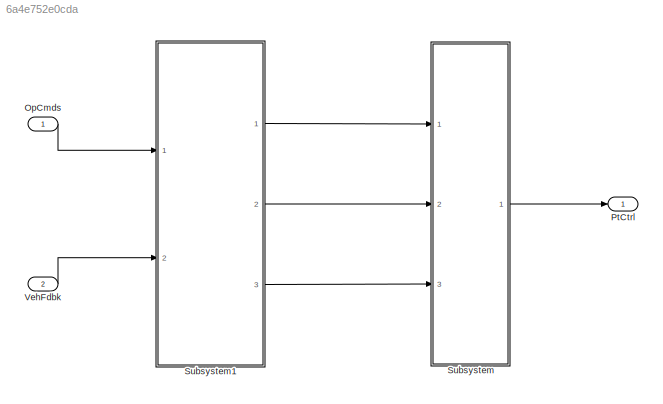
MODEL slx_6a4e752e0cda
KIND model
CONFIG AbsTol = auto
CONFIG EnableMultiTasking = off
CONFIG FixedStep = auto
CONFIG MaxStep = auto
CONFIG MinStep = auto
CONFIG RelTol = 1e-3
CONFIG SampleTimeConstraint = Unconstrained
CONFIG Solver = VariableStepAuto
CONFIG SolverName = VariableStepAuto
CONFIG StartTime = 0.0
CONFIG StopTime = 10.0
WORKSPACE source: mxarray member
WORKSPACE mot: object (value not decoded)
BLOCK [Inport] OpCmds
BLOCK [Outport] PtCtrl
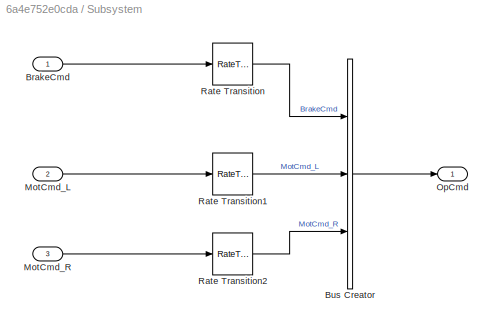
BLOCK [SubSystem] Subsystem
  Ports = [3, 1]
  RequestExecContextInheritance = off
BLOCK [Inport] Subsystem/BrakeCmd
BLOCK [BusCreator] Subsystem/Bus Creator
  DisplayOption = bar
  InheritFromInputs = on
  Inputs = 3
  Ports = [3, 1]
BLOCK [Inport] Subsystem/MotCmd_L
  Port = 2
BLOCK [Inport] Subsystem/MotCmd_R
  Port = 3
BLOCK [Outport] Subsystem/OpCmd
BLOCK [RateTransition] Subsystem/Rate Transition
BLOCK [RateTransition] Subsystem/Rate Transition1
BLOCK [RateTransition] Subsystem/Rate Transition2
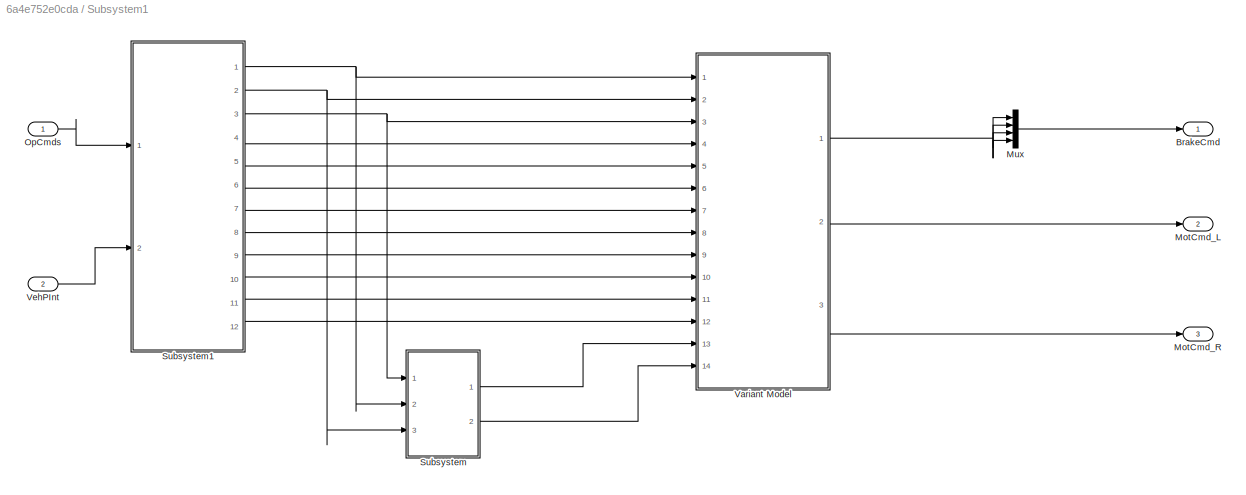
BLOCK [SubSystem] Subsystem1
  Ports = [2, 3]
  RequestExecContextInheritance = off
BLOCK [Outport] Subsystem1/BrakeCmd
BLOCK [Outport] Subsystem1/MotCmd_L
  Port = 2
BLOCK [Outport] Subsystem1/MotCmd_R
  Port = 3
BLOCK [Mux] Subsystem1/Mux
  DisplayOption = bar
  Ports = [4, 1]
BLOCK [Inport] Subsystem1/OpCmds
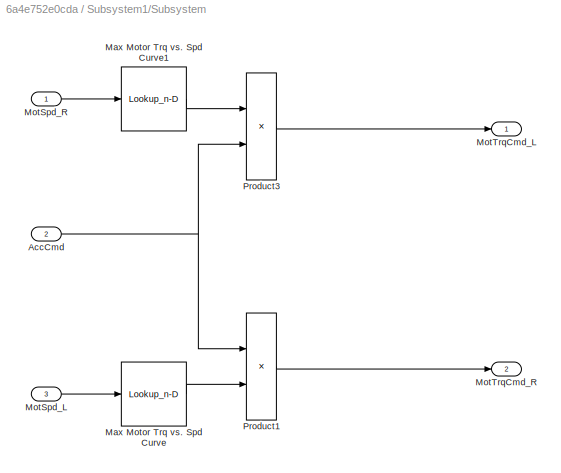
BLOCK [SubSystem] Subsystem1/Subsystem
  Ports = [3, 2]
  RequestExecContextInheritance = off
BLOCK [Inport] Subsystem1/Subsystem/AccCmd
  Port = 2
BLOCK [Lookup_n-D] Subsystem1/Subsystem/Max Motor Trq vs. Spd Curve
  BreakpointsForDimension1 = mot.spd
  ExtrapMethod = Clip
  InternalRulePriority = Speed
  NumberOfTableDimensions = 1
  OutDataTypeStr = Inherit: Inherit from 'Table data'
  Ports = [1, 1]
  RndMeth = Simplest
  Table = mot.trq
  UseLastTableValue = on
BLOCK [Lookup_n-D] Subsystem1/Subsystem/Max Motor Trq vs. Spd Curve1
  BreakpointsForDimension1 = mot.spd
  ExtrapMethod = Clip
  InternalRulePriority = Speed
  NumberOfTableDimensions = 1
  OutDataTypeStr = Inherit: Inherit from 'Table data'
  Ports = [1, 1]
  RndMeth = Simplest
  Table = mot.trq
  UseLastTableValue = on
BLOCK [Inport] Subsystem1/Subsystem/MotSpd_L
  Port = 3
BLOCK [Inport] Subsystem1/Subsystem/MotSpd_R
BLOCK [Outport] Subsystem1/Subsystem/MotTrqCmd_L
BLOCK [Outport] Subsystem1/Subsystem/MotTrqCmd_R
  Port = 2
BLOCK [Product] Subsystem1/Subsystem/Product1
  Ports = [2, 1]
BLOCK [Product] Subsystem1/Subsystem/Product3
  Ports = [2, 1]
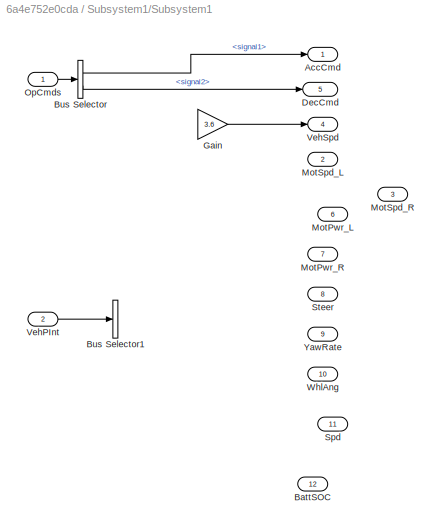
BLOCK [SubSystem] Subsystem1/Subsystem1
  Ports = [2, 12]
  RequestExecContextInheritance = off
BLOCK [Outport] Subsystem1/Subsystem1/AccCmd
BLOCK [Outport] Subsystem1/Subsystem1/BattSOC
  Port = 12
BLOCK [BusSelector] Subsystem1/Subsystem1/Bus Selector
  OutputSignals = signal1,signal2
  Ports = [1, 2]
BLOCK [BusSelector] Subsystem1/Subsystem1/Bus Selector1
  OutputSignals = signal1,signal2
  Ports = [1, 2]
BLOCK [Outport] Subsystem1/Subsystem1/DecCmd
  Port = 5
BLOCK [Gain] Subsystem1/Subsystem1/Gain
  Gain = 3.6
BLOCK [Outport] Subsystem1/Subsystem1/MotPwr_L
  Port = 6
BLOCK [Outport] Subsystem1/Subsystem1/MotPwr_R
  Port = 7
BLOCK [Outport] Subsystem1/Subsystem1/MotSpd_L
  Port = 2
BLOCK [Outport] Subsystem1/Subsystem1/MotSpd_R
  Port = 3
BLOCK [Inport] Subsystem1/Subsystem1/OpCmds
BLOCK [Outport] Subsystem1/Subsystem1/Spd
  Port = 11
BLOCK [Outport] Subsystem1/Subsystem1/Steer
  Port = 8
BLOCK [Inport] Subsystem1/Subsystem1/VehPInt
  Port = 2
BLOCK [Outport] Subsystem1/Subsystem1/VehSpd
  Port = 4
BLOCK [Outport] Subsystem1/Subsystem1/WhlAng
  Port = 10
BLOCK [Outport] Subsystem1/Subsystem1/YawRate
  Port = 9
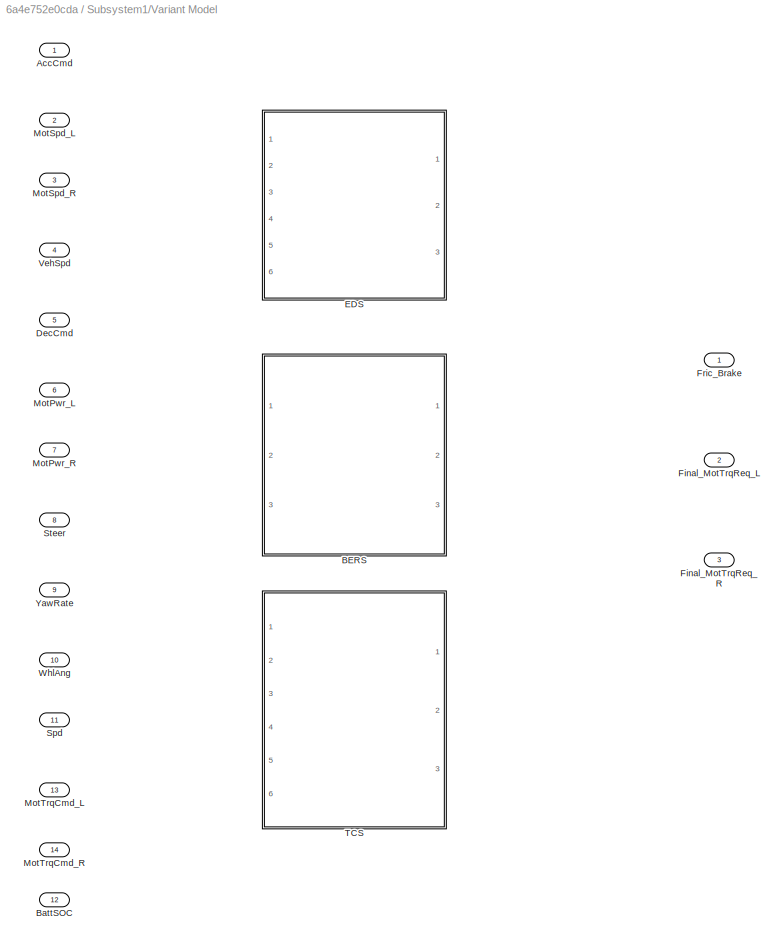
BLOCK [SubSystem] Subsystem1/Variant Model
  Ports = [14, 3]
  RequestExecContextInheritance = off
  Variant = on
BLOCK [Inport] Subsystem1/Variant Model/AccCmd
BLOCK [ModelReference] Subsystem1/Variant Model/BERS
  ModelNameDialog = BERS.slx
  ModelReferenceVersion = 1.2
  Ports = [3, 3]
  VariantControl = Variant1
BLOCK [Inport] Subsystem1/Variant Model/BattSOC
  Port = 12
BLOCK [Inport] Subsystem1/Variant Model/DecCmd
  Port = 5
BLOCK [ModelReference] Subsystem1/Variant Model/EDS
  DisableCoverage = on
  ModelNameDialog = EDS.slx
  ModelReferenceVersion = 1.4
  Ports = [6, 3]
  VariantControl = Variant
BLOCK [Outport] Subsystem1/Variant Model/Final_MotTrqReq_L
  Port = 2
BLOCK [Outport] Subsystem1/Variant Model/Final_MotTrqReq_R
  Port = 3
BLOCK [Outport] Subsystem1/Variant Model/Fric_Brake
BLOCK [Inport] Subsystem1/Variant Model/MotPwr_L
  Port = 6
BLOCK [Inport] Subsystem1/Variant Model/MotPwr_R
  Port = 7
BLOCK [Inport] Subsystem1/Variant Model/MotSpd_L
  Port = 2
BLOCK [Inport] Subsystem1/Variant Model/MotSpd_R
  Port = 3
BLOCK [Inport] Subsystem1/Variant Model/MotTrqCmd_L
  Port = 13
BLOCK [Inport] Subsystem1/Variant Model/MotTrqCmd_R
  Port = 14
BLOCK [Inport] Subsystem1/Variant Model/Spd
  Port = 11
BLOCK [Inport] Subsystem1/Variant Model/Steer
  Port = 8
BLOCK [ModelReference] Subsystem1/Variant Model/TCS
  ModelNameDialog = TCS.slx
  ModelReferenceVersion = 1.3
  Ports = [6, 3]
  VariantControl = Choice
BLOCK [Inport] Subsystem1/Variant Model/VehSpd
  Port = 4
BLOCK [Inport] Subsystem1/Variant Model/WhlAng
  Port = 10
BLOCK [Inport] Subsystem1/Variant Model/YawRate
  Port = 9
BLOCK [Inport] Subsystem1/VehPInt
  Port = 2
BLOCK [Inport] VehFdbk
  Port = 2
LINE OpCmds:1 -> Subsystem1:1
LINE Subsystem/BrakeCmd:1 -> Subsystem/Rate Transition:1
LINE Subsystem/Bus Creator:1 -> Subsystem/OpCmd:1
LINE Subsystem/MotCmd_L:1 -> Subsystem/Rate Transition1:1
LINE Subsystem/MotCmd_R:1 -> Subsystem/Rate Transition2:1
LINE Subsystem/Rate Transition1:1 -> Subsystem/Bus Creator:2
LINE Subsystem/Rate Transition2:1 -> Subsystem/Bus Creator:3
LINE Subsystem/Rate Transition:1 -> Subsystem/Bus Creator:1
LINE Subsystem1/Mux:1 -> Subsystem1/BrakeCmd:1
LINE Subsystem1/OpCmds:1 -> Subsystem1/Subsystem1:1
NET Subsystem1/Subsystem/AccCmd:1 -> Subsystem1/Subsystem/Product1:1, Subsystem1/Subsystem/Product3:2
LINE Subsystem1/Subsystem/Max Motor Trq vs. Spd Curve1:1 -> Subsystem1/Subsystem/Product3:1
LINE Subsystem1/Subsystem/Max Motor Trq vs. Spd Curve:1 -> Subsystem1/Subsystem/Product1:2
LINE Subsystem1/Subsystem/MotSpd_L:1 -> Subsystem1/Subsystem/Max Motor Trq vs. Spd Curve:1
LINE Subsystem1/Subsystem/MotSpd_R:1 -> Subsystem1/Subsystem/Max Motor Trq vs. Spd Curve1:1
LINE Subsystem1/Subsystem/Product1:1 -> Subsystem1/Subsystem/MotTrqCmd_R:1
LINE Subsystem1/Subsystem/Product3:1 -> Subsystem1/Subsystem/MotTrqCmd_L:1
LINE Subsystem1/Subsystem1/Bus Selector:1 -> Subsystem1/Subsystem1/AccCmd:1
LINE Subsystem1/Subsystem1/Bus Selector:2 -> Subsystem1/Subsystem1/DecCmd:1
LINE Subsystem1/Subsystem1/Gain:1 -> Subsystem1/Subsystem1/VehSpd:1
LINE Subsystem1/Subsystem1/OpCmds:1 -> Subsystem1/Subsystem1/Bus Selector:1
LINE Subsystem1/Subsystem1/VehPInt:1 -> Subsystem1/Subsystem1/Bus Selector1:1
NET Subsystem1/Subsystem1:1 -> Subsystem1/Subsystem:2, Subsystem1/Variant Model:1
LINE Subsystem1/Subsystem1:10 -> Subsystem1/Variant Model:10
LINE Subsystem1/Subsystem1:11 -> Subsystem1/Variant Model:11
LINE Subsystem1/Subsystem1:12 -> Subsystem1/Variant Model:12
NET Subsystem1/Subsystem1:2 -> Subsystem1/Subsystem:3, Subsystem1/Variant Model:2
NET Subsystem1/Subsystem1:3 -> Subsystem1/Subsystem:1, Subsystem1/Variant Model:3
LINE Subsystem1/Subsystem1:4 -> Subsystem1/Variant Model:4
LINE Subsystem1/Subsystem1:5 -> Subsystem1/Variant Model:5
LINE Subsystem1/Subsystem1:6 -> Subsystem1/Variant Model:6
LINE Subsystem1/Subsystem1:7 -> Subsystem1/Variant Model:7
LINE Subsystem1/Subsystem1:8 -> Subsystem1/Variant Model:8
LINE Subsystem1/Subsystem1:9 -> Subsystem1/Variant Model:9
LINE Subsystem1/Subsystem:1 -> Subsystem1/Variant Model:13
LINE Subsystem1/Subsystem:2 -> Subsystem1/Variant Model:14
NET Subsystem1/Variant Model:1 -> Subsystem1/Mux:1, Subsystem1/Mux:2, Subsystem1/Mux:3, Subsystem1/Mux:4
LINE Subsystem1/Variant Model:2 -> Subsystem1/MotCmd_L:1
LINE Subsystem1/Variant Model:3 -> Subsystem1/MotCmd_R:1
LINE Subsystem1/VehPInt:1 -> Subsystem1/Subsystem1:2
LINE Subsystem1:1 -> Subsystem:1
LINE Subsystem1:2 -> Subsystem:2
LINE Subsystem1:3 -> Subsystem:3
LINE Subsystem:1 -> PtCtrl:1
LINE VehFdbk:1 -> Subsystem1:2
note: NET lines group one-source signal fan-out (src -> all destinations, sorted); 1:1 wires keep LINE
